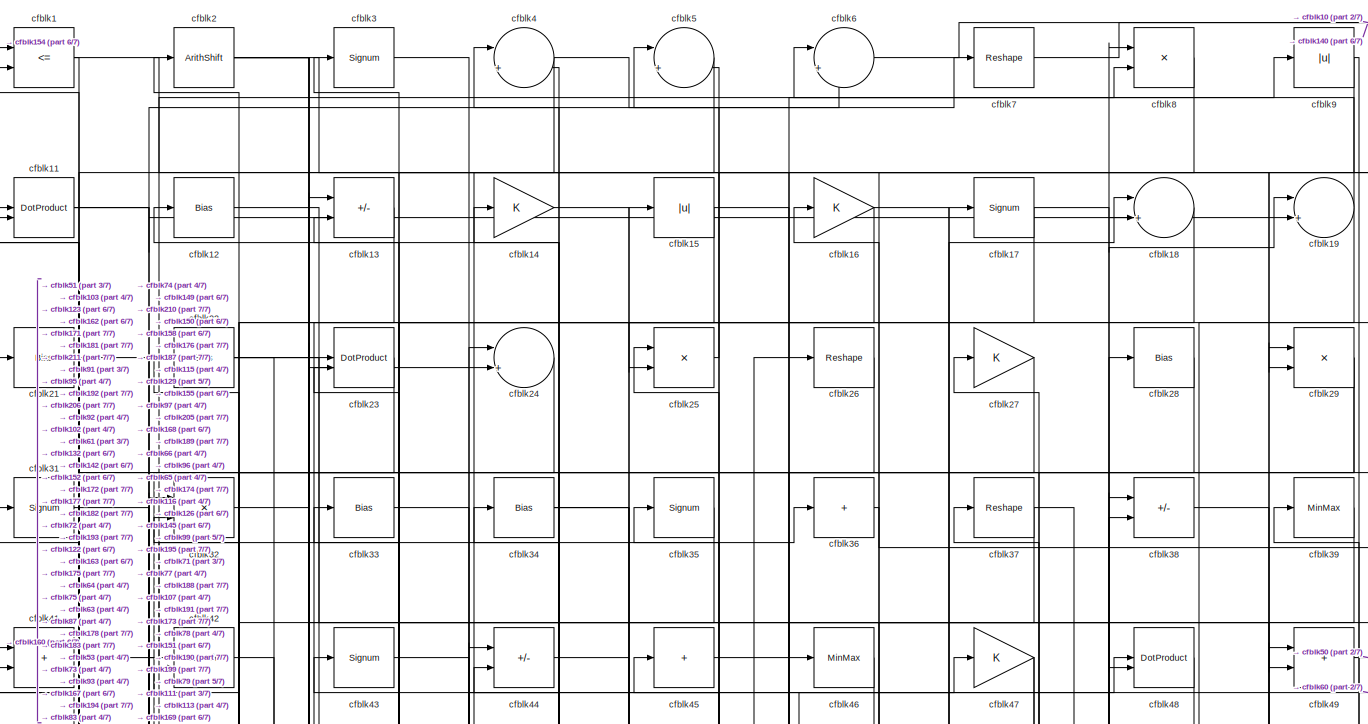
[diagram: root canvas - part 1/7, full width, top band]
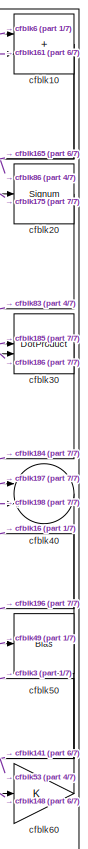
[diagram: root canvas - part 2/7, top right region]
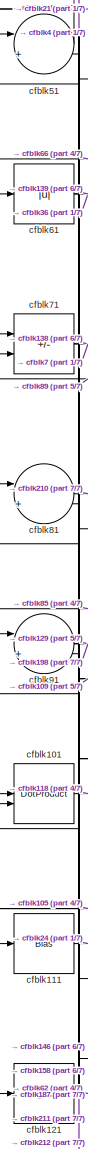
[diagram: root canvas - part 3/7, middle left region]
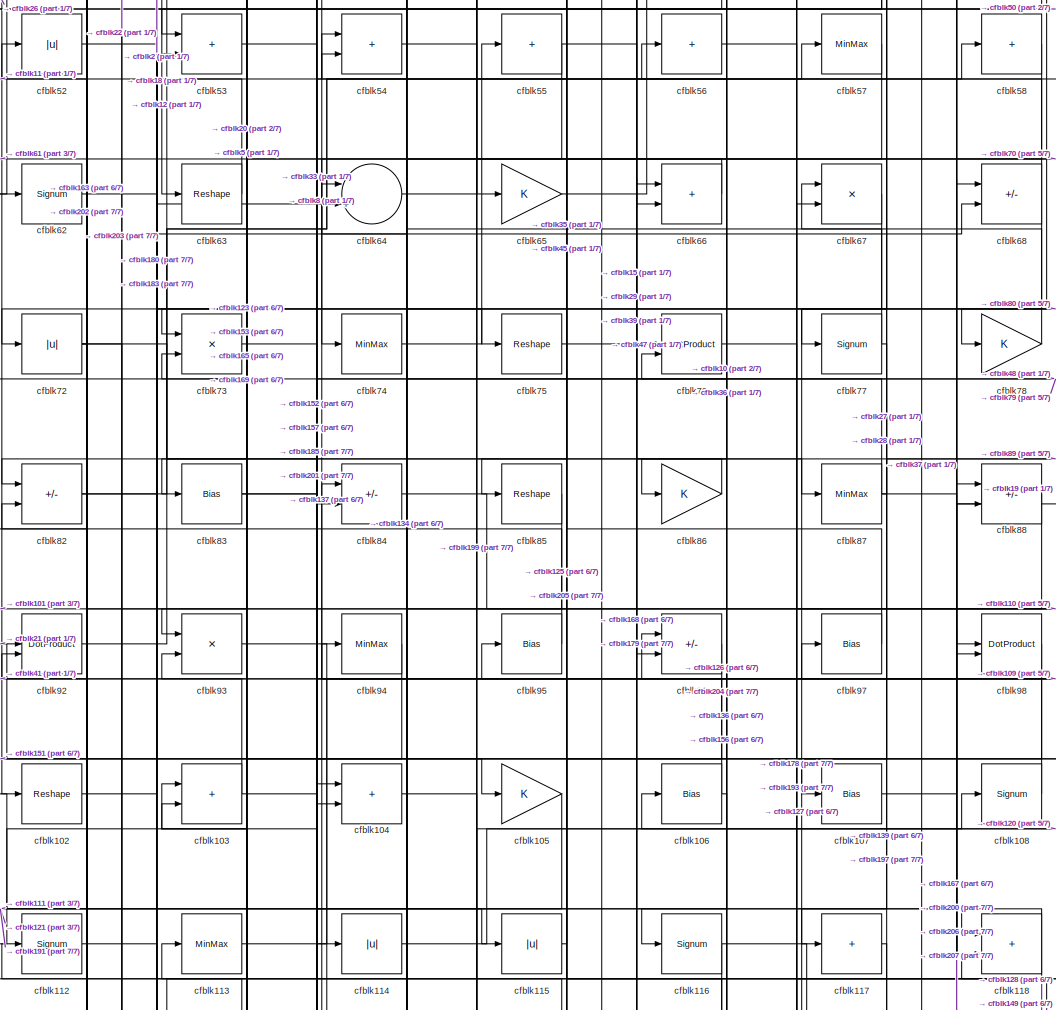
[diagram: root canvas - part 4/7, central region]
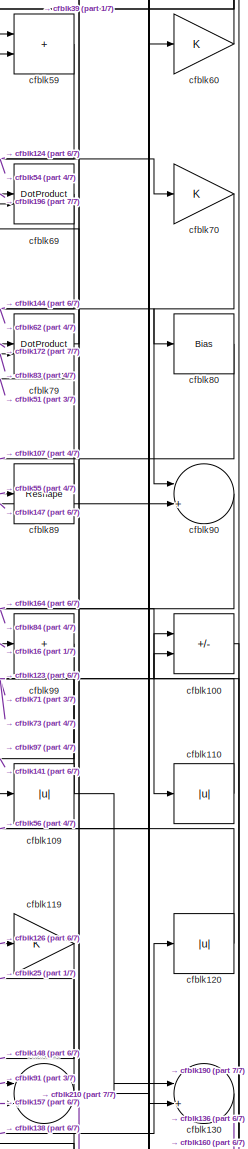
[diagram: root canvas - part 5/7, middle right region]
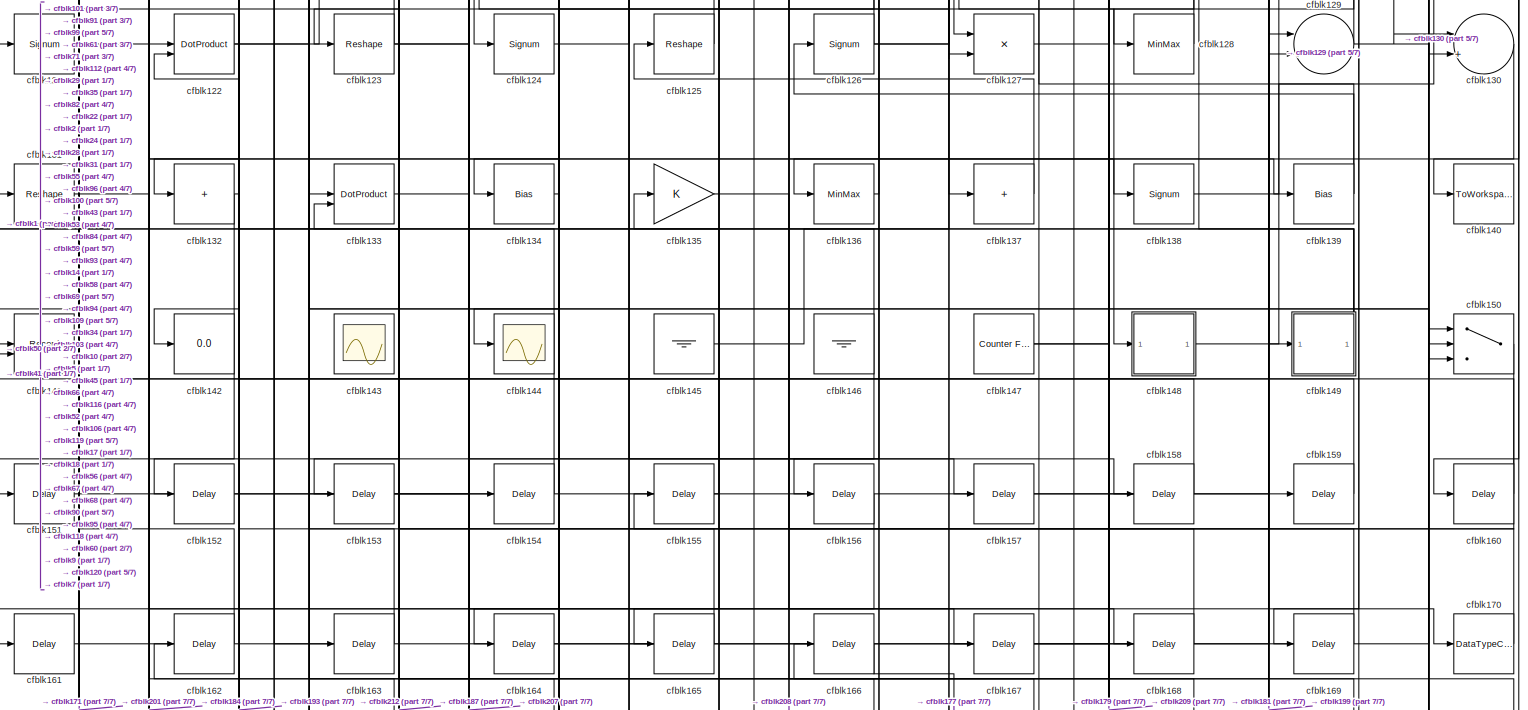
[diagram: root canvas - part 6/7, full width, middle band]
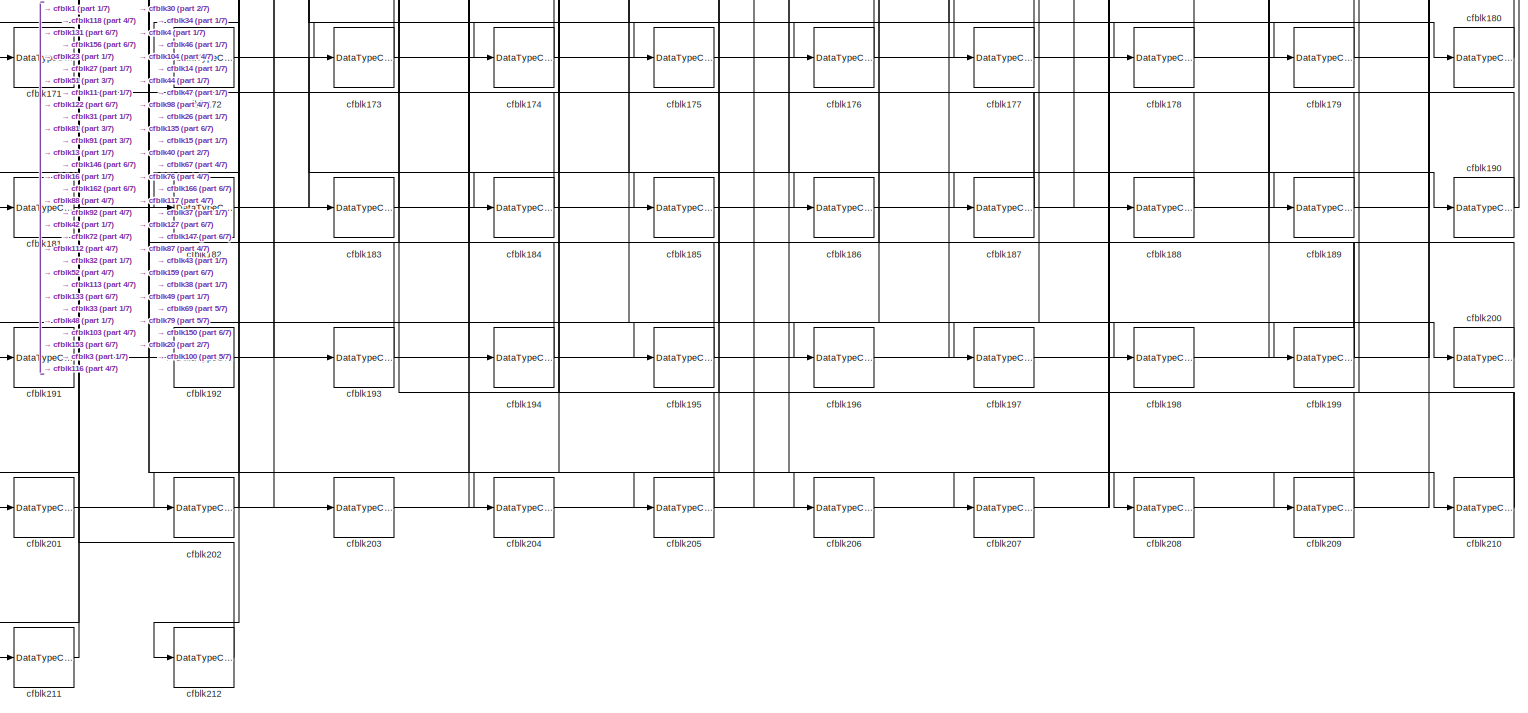
[diagram: root canvas - part 7/7, full width, bottom band]
MODEL slx_db9a657a12e9
KIND model
CONFIG AbsTol = auto
CONFIG EnableMultiTasking = off
CONFIG FixedStep = auto
CONFIG MaxStep = auto
CONFIG MinStep = auto
CONFIG RelTol = 1e-3
CONFIG SampleTimeConstraint = Unconstrained
CONFIG SolverName = VariableStepAuto
CONFIG StartTime = 0.0
CONFIG StopTime = 10.0
BLOCK [RelationalOperator] cfblk1
  InputSameDT = off
  Operator = <=
  OutDataTypeStr = boolean
BLOCK [Sum] cfblk10
  IconShape = rectangular
BLOCK [Sum] cfblk100
  IconShape = rectangular
  Inputs = +-
BLOCK [DotProduct] cfblk101
  OutDataTypeStr = Inherit: Inherit via internal rule
BLOCK [Reshape] cfblk102
BLOCK [Sum] cfblk103
  IconShape = rectangular
BLOCK [Sum] cfblk104
  IconShape = rectangular
BLOCK [Gain] cfblk105
BLOCK [Bias] cfblk106
  Bias = 0.0
  SaturateOnIntegerOverflow = off
BLOCK [Bias] cfblk107
  Bias = 0.0
  SaturateOnIntegerOverflow = off
BLOCK [Signum] cfblk108
BLOCK [Abs] cfblk109
  SaturateOnIntegerOverflow = off
BLOCK [DotProduct] cfblk11
  OutDataTypeStr = Inherit: Inherit via internal rule
BLOCK [Abs] cfblk110
  SaturateOnIntegerOverflow = off
BLOCK [Bias] cfblk111
  Bias = 0.0
  SaturateOnIntegerOverflow = off
BLOCK [Signum] cfblk112
BLOCK [MinMax] cfblk113
BLOCK [Abs] cfblk114
  SaturateOnIntegerOverflow = off
BLOCK [Abs] cfblk115
  SaturateOnIntegerOverflow = off
BLOCK [Signum] cfblk116
BLOCK [Sum] cfblk117
  IconShape = rectangular
  Inputs = +
BLOCK [Sum] cfblk118
  IconShape = rectangular
BLOCK [Gain] cfblk119
BLOCK [Bias] cfblk12
  Bias = 0.0
  SaturateOnIntegerOverflow = off
BLOCK [Abs] cfblk120
  SaturateOnIntegerOverflow = off
BLOCK [Signum] cfblk121
BLOCK [DotProduct] cfblk122
  OutDataTypeStr = Inherit: Inherit via internal rule
BLOCK [Reshape] cfblk123
BLOCK [Signum] cfblk124
BLOCK [Reshape] cfblk125
BLOCK [Signum] cfblk126
BLOCK [Product] cfblk127
  Inputs = */
  RndMeth = Zero
  SaturateOnIntegerOverflow = on
BLOCK [MinMax] cfblk128
BLOCK [Sum] cfblk129
  Inputs = |++
BLOCK [Sum] cfblk13
  IconShape = rectangular
  Inputs = +-
BLOCK [Sum] cfblk130
  Inputs = |++
BLOCK [Reshape] cfblk131
BLOCK [Sum] cfblk132
  IconShape = rectangular
  Inputs = +
BLOCK [DotProduct] cfblk133
  OutDataTypeStr = Inherit: Inherit via internal rule
BLOCK [Bias] cfblk134
  Bias = 0.0
  SaturateOnIntegerOverflow = off
BLOCK [Gain] cfblk135
BLOCK [MinMax] cfblk136
BLOCK [Sum] cfblk137
  IconShape = rectangular
  Inputs = +
BLOCK [Signum] cfblk138
BLOCK [Bias] cfblk139
  Bias = 0.0
  SaturateOnIntegerOverflow = off
BLOCK [Gain] cfblk14
BLOCK [ToWorkspace] cfblk140
  MaxDataPoints = inf
  SampleTime = -1
  SaveFormat = Timeseries
  VariableName = simout
BLOCK [Record] cfblk141
  CompatibilityTag = XY
  FileSettingsInternal = {"entries":[{"content":{"excelSettings":{"content":{},"type":"Streamout.ExcelSettings"}},"type":"Streamout.FileSettingStorage","uuid":""}],"packageUris":["http:\/\/schema.mathworks.com\/mf0\/streamout_blocks\/R2020a"],"version":"1.0"}
  Layout = [1 1]
  SignalsInternal = {"entries":[{"content":{"signals":[{"content":{"blockPath":[],"dimensions":[1],"domain":"","lineColor":"#a2142f","plots":[1],"port":1,"signalID":4777,"signalName":"XY Graph:1"},"type":"RecordBlkView.Signal","uuid":""},{"content":{"blockPath":[],"dimensions":[1],"domain":"","lineColor":"#139fff","plots":[1],"port":2,"signalID":4780,"signalName":"XY Graph:2"},"type":"RecordBlkView.Signal","uuid":""}...<+146ch>
  VisualizationBindings = {"xyplotplugin":{"info":[{"series":[{"bindingParametersList":[{"parameter":"X-Axis","signalID":4777,"signalName":"XY Graph:1"},{"parameter":"Y-Axis","signalID":4780,"signalName":"XY Graph:2"}],"seriesID":27607}],"subplotID":1}]}}
  st = -1
BLOCK [Display] cfblk142
  Decimation = 1
BLOCK [Scope] cfblk143
  Floating = on
  NumInputPorts = 1
  ScopeSpecificationString = Simulink.scopes.TimeScopeBlockCfg('CurrentConfiguration', extmgr.ConfigurationSet(extmgr.Configuration('Core','General UI',true,'FigureColor',[0.156862745098039 0.156862745098039 0.156862745098039]),extmgr.Configuration('Core','Source UI',true),extmgr.Configuration('Sources','WiredSimulink',true,'DataLoggingVariableName','ScopeData1','DataLoggingSaveFormat','StructureWithTime','DataLoggingLimitDat...<+2713ch>
BLOCK [Scope] cfblk144
  Floating = off
  NumInputPorts = 1
  ScopeSpecificationString = Simulink.scopes.TimeScopeBlockCfg('CurrentConfiguration', extmgr.ConfigurationSet(extmgr.Configuration('Core','General UI',true),extmgr.Configuration('Core','Source UI',true),extmgr.Configuration('Sources','WiredSimulink',true,'DataLoggingVariableName','ScopeData2','DataLoggingSaveFormat','Array','DataLoggingLimitDataPoints',true,'DataLoggingDecimation','1'),extmgr.Configuration('Visuals','Time Do...<+868ch>
BLOCK [Ground] cfblk145
BLOCK [Ground] cfblk146
BLOCK [Reference] cfblk147  REF=hdlsllib/Sources/Counter
Free-Running
  SourceBlock = hdlsllib/Sources/Counter\nFree-Running
  SourceType = Counter Free-Running
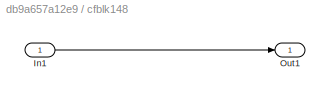
BLOCK [SubSystem] cfblk148
  LibrarySourceBlock = hdlsllib/Ports &\nSubsystems/Subsystem
BLOCK [Inport] cfblk148/In1
BLOCK [Outport] cfblk148/Out1
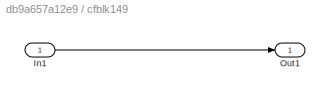
BLOCK [SubSystem] cfblk149
  LibrarySourceBlock = hdlsllib/Ports &\nSubsystems/Subsystem
BLOCK [Inport] cfblk149/In1
BLOCK [Outport] cfblk149/Out1
BLOCK [Abs] cfblk15
  SaturateOnIntegerOverflow = off
BLOCK [Switch] cfblk150
  InputSameDT = off
  SaturateOnIntegerOverflow = off
BLOCK [Delay] cfblk151
  InputPortMap = u0
  SampleTime = 1
BLOCK [Delay] cfblk152
  InputPortMap = u0
  SampleTime = 1
BLOCK [Delay] cfblk153
  InputPortMap = u0
  SampleTime = 1
BLOCK [Delay] cfblk154
  InputPortMap = u0
  SampleTime = 1
BLOCK [Delay] cfblk155
  InputPortMap = u0
  SampleTime = 1
BLOCK [Delay] cfblk156
  InputPortMap = u0
  SampleTime = 1
BLOCK [Delay] cfblk157
  InputPortMap = u0
  SampleTime = 1
BLOCK [Delay] cfblk158
  InputPortMap = u0
  SampleTime = 1
BLOCK [Delay] cfblk159
  InputPortMap = u0
  SampleTime = 1
BLOCK [Gain] cfblk16
BLOCK [Delay] cfblk160
  InputPortMap = u0
  SampleTime = 1
BLOCK [Delay] cfblk161
  InputPortMap = u0
  SampleTime = 1
BLOCK [Delay] cfblk162
  InputPortMap = u0
  SampleTime = 1
BLOCK [Delay] cfblk163
  InputPortMap = u0
  SampleTime = 1
BLOCK [Delay] cfblk164
  InputPortMap = u0
  SampleTime = 1
BLOCK [Delay] cfblk165
  InputPortMap = u0
  SampleTime = 1
BLOCK [Delay] cfblk166
  InputPortMap = u0
  SampleTime = 1
BLOCK [Delay] cfblk167
  InputPortMap = u0
  SampleTime = 1
BLOCK [Delay] cfblk168
  InputPortMap = u0
  SampleTime = 1
BLOCK [Delay] cfblk169
  InputPortMap = u0
  SampleTime = 1
BLOCK [Signum] cfblk17
BLOCK [DataTypeConversion] cfblk170
  OutDataTypeStr = uint8
  RndMeth = Floor
  SaturateOnIntegerOverflow = off
BLOCK [DataTypeConversion] cfblk171
  OutDataTypeStr = uint8
  RndMeth = Floor
  SaturateOnIntegerOverflow = off
BLOCK [DataTypeConversion] cfblk172
  RndMeth = Floor
  SaturateOnIntegerOverflow = off
BLOCK [DataTypeConversion] cfblk173
  OutDataTypeStr = uint8
  RndMeth = Floor
  SaturateOnIntegerOverflow = off
BLOCK [DataTypeConversion] cfblk174
  OutDataTypeStr = uint8
  RndMeth = Floor
  SaturateOnIntegerOverflow = off
BLOCK [DataTypeConversion] cfblk175
  OutDataTypeStr = uint8
  RndMeth = Floor
  SaturateOnIntegerOverflow = off
BLOCK [DataTypeConversion] cfblk176
  OutDataTypeStr = uint8
  RndMeth = Floor
  SaturateOnIntegerOverflow = off
BLOCK [DataTypeConversion] cfblk177
  OutDataTypeStr = uint8
  RndMeth = Floor
  SaturateOnIntegerOverflow = off
BLOCK [DataTypeConversion] cfblk178
  OutDataTypeStr = uint8
  RndMeth = Floor
  SaturateOnIntegerOverflow = off
BLOCK [DataTypeConversion] cfblk179
  OutDataTypeStr = uint8
  RndMeth = Floor
  SaturateOnIntegerOverflow = off
BLOCK [Sum] cfblk18
  Inputs = |++
BLOCK [DataTypeConversion] cfblk180
  OutDataTypeStr = uint8
  RndMeth = Floor
  SaturateOnIntegerOverflow = off
BLOCK [DataTypeConversion] cfblk181
  OutDataTypeStr = uint8
  RndMeth = Floor
  SaturateOnIntegerOverflow = off
BLOCK [DataTypeConversion] cfblk182
  OutDataTypeStr = uint8
  RndMeth = Floor
  SaturateOnIntegerOverflow = off
BLOCK [DataTypeConversion] cfblk183
  OutDataTypeStr = uint8
  RndMeth = Floor
  SaturateOnIntegerOverflow = off
BLOCK [DataTypeConversion] cfblk184
  OutDataTypeStr = uint8
  RndMeth = Floor
  SaturateOnIntegerOverflow = off
BLOCK [DataTypeConversion] cfblk185
  OutDataTypeStr = uint8
  RndMeth = Floor
  SaturateOnIntegerOverflow = off
BLOCK [DataTypeConversion] cfblk186
  OutDataTypeStr = uint8
  RndMeth = Floor
  SaturateOnIntegerOverflow = off
BLOCK [DataTypeConversion] cfblk187
  RndMeth = Floor
  SaturateOnIntegerOverflow = off
BLOCK [DataTypeConversion] cfblk188
  OutDataTypeStr = uint8
  RndMeth = Floor
  SaturateOnIntegerOverflow = off
BLOCK [DataTypeConversion] cfblk189
  OutDataTypeStr = uint8
  RndMeth = Floor
  SaturateOnIntegerOverflow = off
BLOCK [Sum] cfblk19
  Inputs = |++
BLOCK [DataTypeConversion] cfblk190
  RndMeth = Floor
  SaturateOnIntegerOverflow = off
BLOCK [DataTypeConversion] cfblk191
  OutDataTypeStr = uint8
  RndMeth = Floor
  SaturateOnIntegerOverflow = off
BLOCK [DataTypeConversion] cfblk192
  OutDataTypeStr = uint8
  RndMeth = Floor
  SaturateOnIntegerOverflow = off
BLOCK [DataTypeConversion] cfblk193
  RndMeth = Floor
  SaturateOnIntegerOverflow = off
BLOCK [DataTypeConversion] cfblk194
  OutDataTypeStr = uint8
  RndMeth = Floor
  SaturateOnIntegerOverflow = off
BLOCK [DataTypeConversion] cfblk195
  OutDataTypeStr = uint8
  RndMeth = Floor
  SaturateOnIntegerOverflow = off
BLOCK [DataTypeConversion] cfblk196
  OutDataTypeStr = uint8
  RndMeth = Floor
  SaturateOnIntegerOverflow = off
BLOCK [DataTypeConversion] cfblk197
  OutDataTypeStr = uint8
  RndMeth = Floor
  SaturateOnIntegerOverflow = off
BLOCK [DataTypeConversion] cfblk198
  OutDataTypeStr = uint8
  RndMeth = Floor
  SaturateOnIntegerOverflow = off
BLOCK [DataTypeConversion] cfblk199
  RndMeth = Floor
  SaturateOnIntegerOverflow = off
BLOCK [ArithShift] cfblk2
  BitShiftNumber = 8
  InputPortMap = u0
BLOCK [Signum] cfblk20
BLOCK [DataTypeConversion] cfblk200
  OutDataTypeStr = uint8
  RndMeth = Floor
  SaturateOnIntegerOverflow = off
BLOCK [DataTypeConversion] cfblk201
  OutDataTypeStr = uint8
  RndMeth = Floor
  SaturateOnIntegerOverflow = off
BLOCK [DataTypeConversion] cfblk202
  OutDataTypeStr = uint8
  RndMeth = Floor
  SaturateOnIntegerOverflow = off
BLOCK [DataTypeConversion] cfblk203
  OutDataTypeStr = uint8
  RndMeth = Floor
  SaturateOnIntegerOverflow = off
BLOCK [DataTypeConversion] cfblk204
  OutDataTypeStr = uint8
  RndMeth = Floor
  SaturateOnIntegerOverflow = off
BLOCK [DataTypeConversion] cfblk205
  RndMeth = Floor
  SaturateOnIntegerOverflow = off
BLOCK [DataTypeConversion] cfblk206
  OutDataTypeStr = uint8
  RndMeth = Floor
  SaturateOnIntegerOverflow = off
BLOCK [DataTypeConversion] cfblk207
  OutDataTypeStr = uint8
  RndMeth = Floor
  SaturateOnIntegerOverflow = off
BLOCK [DataTypeConversion] cfblk208
  OutDataTypeStr = uint8
  RndMeth = Floor
  SaturateOnIntegerOverflow = off
BLOCK [DataTypeConversion] cfblk209
  OutDataTypeStr = uint8
  RndMeth = Floor
  SaturateOnIntegerOverflow = off
BLOCK [Bias] cfblk21
  Bias = 0.0
  SaturateOnIntegerOverflow = off
BLOCK [DataTypeConversion] cfblk210
  RndMeth = Floor
  SaturateOnIntegerOverflow = off
BLOCK [DataTypeConversion] cfblk211
  OutDataTypeStr = uint8
  RndMeth = Floor
  SaturateOnIntegerOverflow = off
BLOCK [DataTypeConversion] cfblk212
  OutDataTypeStr = uint8
  RndMeth = Floor
  SaturateOnIntegerOverflow = off
BLOCK [Bias] cfblk22
  Bias = 0.0
  SaturateOnIntegerOverflow = off
BLOCK [DotProduct] cfblk23
  OutDataTypeStr = Inherit: Inherit via internal rule
BLOCK [Sum] cfblk24
  Inputs = |++
BLOCK [Product] cfblk25
  Inputs = */
  RndMeth = Zero
  SaturateOnIntegerOverflow = on
BLOCK [Reshape] cfblk26
BLOCK [Gain] cfblk27
BLOCK [Bias] cfblk28
  Bias = 0.0
  SaturateOnIntegerOverflow = off
BLOCK [Product] cfblk29
  Inputs = */
  RndMeth = Zero
  SaturateOnIntegerOverflow = on
BLOCK [Signum] cfblk3
BLOCK [DotProduct] cfblk30
  OutDataTypeStr = Inherit: Inherit via internal rule
BLOCK [Signum] cfblk31
BLOCK [Product] cfblk32
  Inputs = */
  RndMeth = Zero
  SaturateOnIntegerOverflow = on
BLOCK [Bias] cfblk33
  Bias = 0.0
  SaturateOnIntegerOverflow = off
BLOCK [Bias] cfblk34
  Bias = 0.0
  SaturateOnIntegerOverflow = off
BLOCK [Signum] cfblk35
BLOCK [Sum] cfblk36
  IconShape = rectangular
  Inputs = +
BLOCK [Reshape] cfblk37
BLOCK [Sum] cfblk38
  IconShape = rectangular
  Inputs = +-
BLOCK [MinMax] cfblk39
BLOCK [Sum] cfblk4
  Inputs = |++
BLOCK [Sum] cfblk40
  Inputs = |++
BLOCK [Sum] cfblk41
  IconShape = rectangular
BLOCK [DotProduct] cfblk42
  OutDataTypeStr = Inherit: Inherit via internal rule
BLOCK [Signum] cfblk43
BLOCK [Sum] cfblk44
  IconShape = rectangular
  Inputs = +-
BLOCK [Sum] cfblk45
  IconShape = rectangular
  Inputs = +
BLOCK [MinMax] cfblk46
BLOCK [Gain] cfblk47
BLOCK [DotProduct] cfblk48
  OutDataTypeStr = Inherit: Inherit via internal rule
BLOCK [Sum] cfblk49
  IconShape = rectangular
BLOCK [Sum] cfblk5
  Inputs = |++
BLOCK [Bias] cfblk50
  Bias = 0.0
  SaturateOnIntegerOverflow = off
BLOCK [Sum] cfblk51
  Inputs = |++
BLOCK [Abs] cfblk52
  SaturateOnIntegerOverflow = off
BLOCK [Sum] cfblk53
  IconShape = rectangular
BLOCK [Sum] cfblk54
  IconShape = rectangular
BLOCK [Sum] cfblk55
  IconShape = rectangular
  Inputs = +
BLOCK [Sum] cfblk56
  IconShape = rectangular
  Inputs = +
BLOCK [MinMax] cfblk57
BLOCK [Sum] cfblk58
  IconShape = rectangular
  Inputs = +
BLOCK [Sum] cfblk59
  IconShape = rectangular
BLOCK [Sum] cfblk6
  Inputs = |++
BLOCK [Gain] cfblk60
BLOCK [Abs] cfblk61
  SaturateOnIntegerOverflow = off
BLOCK [Signum] cfblk62
BLOCK [Reshape] cfblk63
BLOCK [Sum] cfblk64
  Inputs = |++
BLOCK [Gain] cfblk65
BLOCK [Sum] cfblk66
  IconShape = rectangular
BLOCK [Product] cfblk67
  Inputs = */
  RndMeth = Zero
  SaturateOnIntegerOverflow = on
BLOCK [Sum] cfblk68
  IconShape = rectangular
  Inputs = +-
BLOCK [DotProduct] cfblk69
  OutDataTypeStr = Inherit: Inherit via internal rule
BLOCK [Reshape] cfblk7
BLOCK [Gain] cfblk70
BLOCK [Sum] cfblk71
  IconShape = rectangular
  Inputs = +-
BLOCK [Abs] cfblk72
  SaturateOnIntegerOverflow = off
BLOCK [Product] cfblk73
  Inputs = */
  RndMeth = Zero
  SaturateOnIntegerOverflow = on
BLOCK [MinMax] cfblk74
BLOCK [Reshape] cfblk75
BLOCK [DotProduct] cfblk76
  OutDataTypeStr = Inherit: Inherit via internal rule
BLOCK [Signum] cfblk77
BLOCK [Gain] cfblk78
BLOCK [DotProduct] cfblk79
  OutDataTypeStr = Inherit: Inherit via internal rule
BLOCK [Product] cfblk8
  Inputs = */
  RndMeth = Zero
  SaturateOnIntegerOverflow = on
BLOCK [Bias] cfblk80
  Bias = 0.0
  SaturateOnIntegerOverflow = off
BLOCK [Sum] cfblk81
  Inputs = |++
BLOCK [Sum] cfblk82
  IconShape = rectangular
  Inputs = +-
BLOCK [Bias] cfblk83
  Bias = 0.0
  SaturateOnIntegerOverflow = off
BLOCK [Sum] cfblk84
  IconShape = rectangular
  Inputs = +-
BLOCK [Reshape] cfblk85
BLOCK [Gain] cfblk86
BLOCK [MinMax] cfblk87
BLOCK [Sum] cfblk88
  IconShape = rectangular
  Inputs = +-
BLOCK [Reshape] cfblk89
BLOCK [Abs] cfblk9
  SaturateOnIntegerOverflow = off
BLOCK [Sum] cfblk90
  Inputs = |++
BLOCK [Sum] cfblk91
  Inputs = |++
BLOCK [DotProduct] cfblk92
  OutDataTypeStr = Inherit: Inherit via internal rule
BLOCK [Product] cfblk93
  Inputs = */
  RndMeth = Zero
  SaturateOnIntegerOverflow = on
BLOCK [MinMax] cfblk94
BLOCK [Bias] cfblk95
  Bias = 0.0
  SaturateOnIntegerOverflow = off
BLOCK [Sum] cfblk96
  IconShape = rectangular
  Inputs = +-
BLOCK [Bias] cfblk97
  Bias = 0.0
  SaturateOnIntegerOverflow = off
BLOCK [DotProduct] cfblk98
  OutDataTypeStr = Inherit: Inherit via internal rule
BLOCK [Sum] cfblk99
  IconShape = rectangular
  Inputs = +
LINE cfblk100:1 -> cfblk160:1
LINE cfblk101:1 -> cfblk118:1
LINE cfblk102:1 -> cfblk68:2
NET cfblk103:1 -> cfblk185:1, cfblk41:2
LINE cfblk104:1 -> cfblk199:1
LINE cfblk105:1 -> cfblk121:1
NET cfblk106:1 -> cfblk156:1, cfblk96:1
LINE cfblk107:1 -> cfblk19:1
LINE cfblk108:1 -> cfblk84:1
NET cfblk109:1 -> cfblk130:1, cfblk71:1, cfblk73:2
NET cfblk10:1 -> cfblk165:1, cfblk86:1
LINE cfblk110:1 -> cfblk97:1
LINE cfblk111:1 -> cfblk24:1
LINE cfblk112:1 -> cfblk180:1
LINE cfblk113:1 -> cfblk8:1
LINE cfblk114:1 -> cfblk108:1
LINE cfblk115:1 -> cfblk45:1
NET cfblk116:1 -> cfblk128:1, cfblk204:1
LINE cfblk117:1 -> cfblk197:1
NET cfblk118:1 -> cfblk111:1, cfblk191:1
LINE cfblk119:1 -> cfblk148:1
NET cfblk11:1 -> cfblk19:2, cfblk206:1
LINE cfblk120:1 -> cfblk56:1
LINE cfblk121:1 -> cfblk62:1
NET cfblk122:1 -> cfblk24:2, cfblk28:1
NET cfblk123:1 -> cfblk100:1, cfblk31:1, cfblk59:2
LINE cfblk124:1 -> cfblk109:1
LINE cfblk125:1 -> cfblk103:1
NET cfblk126:1 -> cfblk119:1, cfblk18:1, cfblk52:1
LINE cfblk127:1 -> cfblk209:1
LINE cfblk128:1 -> cfblk95:1
NET cfblk129:1 -> cfblk130:2, cfblk25:1
LINE cfblk12:1 -> cfblk87:1
LINE cfblk130:1 -> cfblk136:1
LINE cfblk131:1 -> cfblk170:1
NET cfblk132:1 -> cfblk161:1, cfblk22:1
LINE cfblk133:1 -> cfblk154:1
LINE cfblk134:1 -> cfblk94:1
LINE cfblk135:1 -> cfblk208:1
LINE cfblk136:1 -> cfblk106:1
LINE cfblk137:1 -> cfblk125:1
LINE cfblk138:1 -> cfblk120:1
NET cfblk139:1 -> cfblk126:1, cfblk67:1
LINE cfblk13:1 -> cfblk172:1
LINE cfblk145:1 -> cfblk17:1
NET cfblk146:1 -> cfblk101:2, cfblk212:1
NET cfblk147:1 -> cfblk179:1, cfblk90:2
LINE cfblk148/In1:1 -> cfblk148/Out1:1
LINE cfblk148:1 -> cfblk60:1
LINE cfblk149/In1:1 -> cfblk149/Out1:1
NET cfblk149:1 -> cfblk112:1, cfblk118:2, cfblk14:1
LINE cfblk14:1 -> cfblk176:1
LINE cfblk150:1 -> cfblk155:1
LINE cfblk151:1 -> cfblk29:1
LINE cfblk152:1 -> cfblk84:2
LINE cfblk153:1 -> cfblk207:1
LINE cfblk154:1 -> cfblk1:1
LINE cfblk155:1 -> cfblk5:1
LINE cfblk156:1 -> cfblk201:1
LINE cfblk157:1 -> cfblk129:2
LINE cfblk158:1 -> cfblk91:1
LINE cfblk159:1 -> cfblk122:2
NET cfblk15:1 -> cfblk189:1, cfblk73:1
LINE cfblk160:1 -> cfblk41:1
LINE cfblk161:1 -> cfblk10:2
LINE cfblk162:1 -> cfblk1:2
LINE cfblk163:1 -> cfblk82:2
LINE cfblk164:1 -> cfblk59:1
LINE cfblk165:1 -> cfblk103:2
LINE cfblk166:1 -> cfblk177:1
LINE cfblk167:1 -> cfblk68:1
LINE cfblk168:1 -> cfblk66:1
LINE cfblk169:1 -> cfblk93:2
NET cfblk16:1 -> cfblk182:1, cfblk99:1
LINE cfblk170:1 -> cfblk133:1
LINE cfblk171:1 -> cfblk131:1
NET cfblk172:1 -> cfblk186:1, cfblk79:1
LINE cfblk173:1 -> cfblk13:1
LINE cfblk174:1 -> cfblk13:2
LINE cfblk175:1 -> cfblk20:1
LINE cfblk176:1 -> cfblk32:1
LINE cfblk177:1 -> cfblk32:2
LINE cfblk178:1 -> cfblk43:1
LINE cfblk179:1 -> cfblk76:1
NET cfblk17:1 -> cfblk18:2, cfblk25:2
LINE cfblk180:1 -> cfblk76:2
LINE cfblk181:1 -> cfblk159:1
LINE cfblk182:1 -> cfblk23:1
LINE cfblk183:1 -> cfblk23:2
LINE cfblk184:1 -> cfblk122:1
LINE cfblk185:1 -> cfblk30:1
LINE cfblk186:1 -> cfblk30:2
NET cfblk187:1 -> cfblk133:2, cfblk51:2
LINE cfblk188:1 -> cfblk44:1
LINE cfblk189:1 -> cfblk44:2
LINE cfblk18:1 -> cfblk63:1
NET cfblk190:1 -> cfblk100:2, cfblk34:1
LINE cfblk191:1 -> cfblk38:1
LINE cfblk192:1 -> cfblk38:2
NET cfblk193:1 -> cfblk162:1, cfblk67:2
LINE cfblk194:1 -> cfblk42:1
LINE cfblk195:1 -> cfblk42:2
LINE cfblk196:1 -> cfblk69:1
LINE cfblk197:1 -> cfblk40:1
LINE cfblk198:1 -> cfblk40:2
NET cfblk199:1 -> cfblk113:1, cfblk166:1, cfblk49:1
NET cfblk19:1 -> cfblk6:1, cfblk78:1
NET cfblk1:1 -> cfblk211:1, cfblk46:1
LINE cfblk200:1 -> cfblk104:1
LINE cfblk201:1 -> cfblk104:2
LINE cfblk202:1 -> cfblk92:2
LINE cfblk203:1 -> cfblk88:1
LINE cfblk204:1 -> cfblk88:2
NET cfblk205:1 -> cfblk26:1, cfblk33:1
LINE cfblk206:1 -> cfblk98:1
LINE cfblk207:1 -> cfblk98:2
LINE cfblk208:1 -> cfblk150:1
LINE cfblk209:1 -> cfblk135:1
LINE cfblk20:1 -> cfblk83:1
NET cfblk210:1 -> cfblk4:1, cfblk4:2, cfblk69:2
LINE cfblk211:1 -> cfblk81:1
LINE cfblk212:1 -> cfblk81:2
LINE cfblk21:1 -> cfblk92:1
NET cfblk22:1 -> cfblk150:2, cfblk163:1, cfblk65:1
LINE cfblk23:1 -> cfblk181:1
LINE cfblk24:1 -> cfblk132:1
LINE cfblk25:1 -> cfblk5:2
LINE cfblk26:1 -> cfblk102:1
LINE cfblk27:1 -> cfblk171:1
LINE cfblk28:1 -> cfblk77:1
NET cfblk29:1 -> cfblk142:1, cfblk66:2
NET cfblk2:1 -> cfblk149:1, cfblk150:3, cfblk48:2, cfblk64:2, cfblk75:1
LINE cfblk30:1 -> cfblk184:1
LINE cfblk31:1 -> cfblk192:1
LINE cfblk32:1 -> cfblk175:1
LINE cfblk33:1 -> cfblk115:1
NET cfblk34:1 -> cfblk158:1, cfblk49:2
LINE cfblk35:1 -> cfblk152:1
LINE cfblk36:1 -> cfblk116:1
NET cfblk37:1 -> cfblk188:1, cfblk53:1
LINE cfblk38:1 -> cfblk190:1
LINE cfblk39:1 -> cfblk96:2
LINE cfblk3:1 -> cfblk194:1
LINE cfblk40:1 -> cfblk196:1
LINE cfblk41:1 -> cfblk9:1
LINE cfblk42:1 -> cfblk193:1
LINE cfblk43:1 -> cfblk167:1
LINE cfblk44:1 -> cfblk187:1
LINE cfblk45:1 -> cfblk168:1
LINE cfblk46:1 -> cfblk174:1
NET cfblk47:1 -> cfblk195:1, cfblk71:2
LINE cfblk48:1 -> cfblk173:1
LINE cfblk49:1 -> cfblk50:1
NET cfblk4:1 -> cfblk6:2, cfblk91:2
NET cfblk50:1 -> cfblk141:2, cfblk16:1, cfblk53:2
LINE cfblk51:1 -> cfblk21:1
LINE cfblk52:1 -> cfblk183:1
LINE cfblk53:1 -> cfblk157:1
LINE cfblk54:1 -> cfblk70:1
NET cfblk55:1 -> cfblk123:1, cfblk89:1
LINE cfblk56:1 -> cfblk127:2
LINE cfblk57:1 -> cfblk85:1
LINE cfblk58:1 -> cfblk134:1
LINE cfblk59:1 -> cfblk124:1
LINE cfblk5:1 -> cfblk93:1
LINE cfblk60:1 -> cfblk3:1
NET cfblk61:1 -> cfblk139:1, cfblk36:1
LINE cfblk62:1 -> cfblk80:1
LINE cfblk63:1 -> cfblk11:1
LINE cfblk64:1 -> cfblk15:1
LINE cfblk65:1 -> cfblk47:1
LINE cfblk66:1 -> cfblk61:1
LINE cfblk67:1 -> cfblk127:1
NET cfblk68:1 -> cfblk54:2, cfblk72:1
LINE cfblk69:1 -> cfblk144:1
LINE cfblk6:1 -> cfblk10:1
LINE cfblk70:1 -> cfblk90:1
NET cfblk71:1 -> cfblk138:1, cfblk7:1
NET cfblk72:1 -> cfblk114:1, cfblk203:1, cfblk2:1
LINE cfblk73:1 -> cfblk105:1
LINE cfblk74:1 -> cfblk55:1
LINE cfblk75:1 -> cfblk8:2
LINE cfblk76:1 -> cfblk178:1
NET cfblk77:1 -> cfblk117:1, cfblk12:1
LINE cfblk78:1 -> cfblk37:1
LINE cfblk79:1 -> cfblk39:1
LINE cfblk7:1 -> cfblk140:1
LINE cfblk80:1 -> cfblk107:1
LINE cfblk81:1 -> cfblk210:1
NET cfblk82:1 -> cfblk54:1, cfblk57:1
NET cfblk83:1 -> cfblk48:1, cfblk79:2
LINE cfblk84:1 -> cfblk110:1
LINE cfblk85:1 -> cfblk101:1
LINE cfblk86:1 -> cfblk82:1
NET cfblk87:1 -> cfblk200:1, cfblk27:1, cfblk64:1
LINE cfblk88:1 -> cfblk202:1
LINE cfblk89:1 -> cfblk51:1
LINE cfblk8:1 -> cfblk74:1
LINE cfblk90:1 -> cfblk164:1
NET cfblk91:1 -> cfblk129:1, cfblk198:1
LINE cfblk92:1 -> cfblk58:1
LINE cfblk93:1 -> cfblk137:1
LINE cfblk94:1 -> cfblk151:1
LINE cfblk95:1 -> cfblk11:2
LINE cfblk96:1 -> cfblk153:1
LINE cfblk97:1 -> cfblk35:1
LINE cfblk98:1 -> cfblk205:1
LINE cfblk99:1 -> cfblk141:1
NET cfblk9:1 -> cfblk169:1, cfblk29:2
note: NET lines group one-source signal fan-out (src -> all destinations, sorted); 1:1 wires keep LINE
